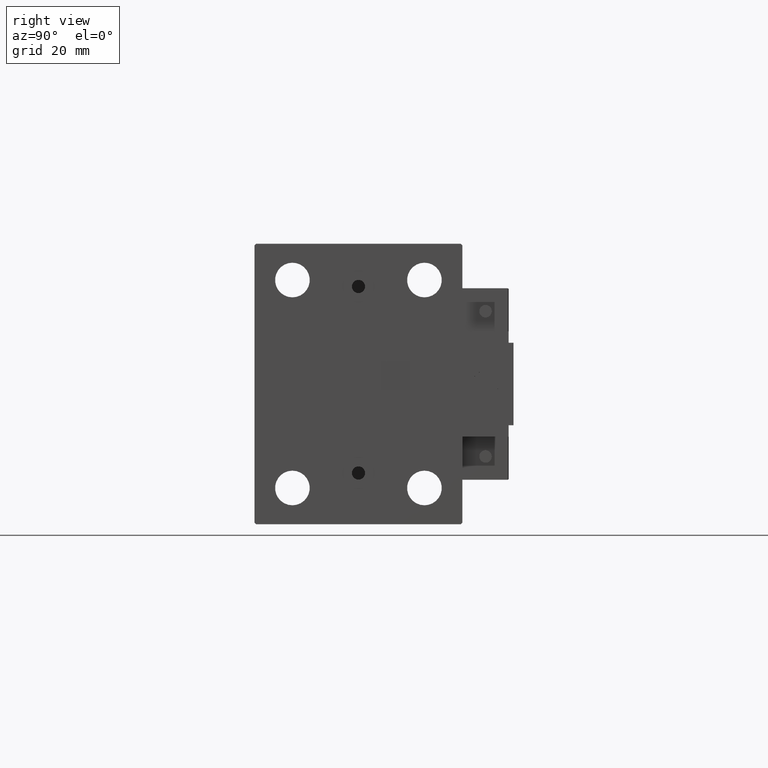
[diagram: clean part render]
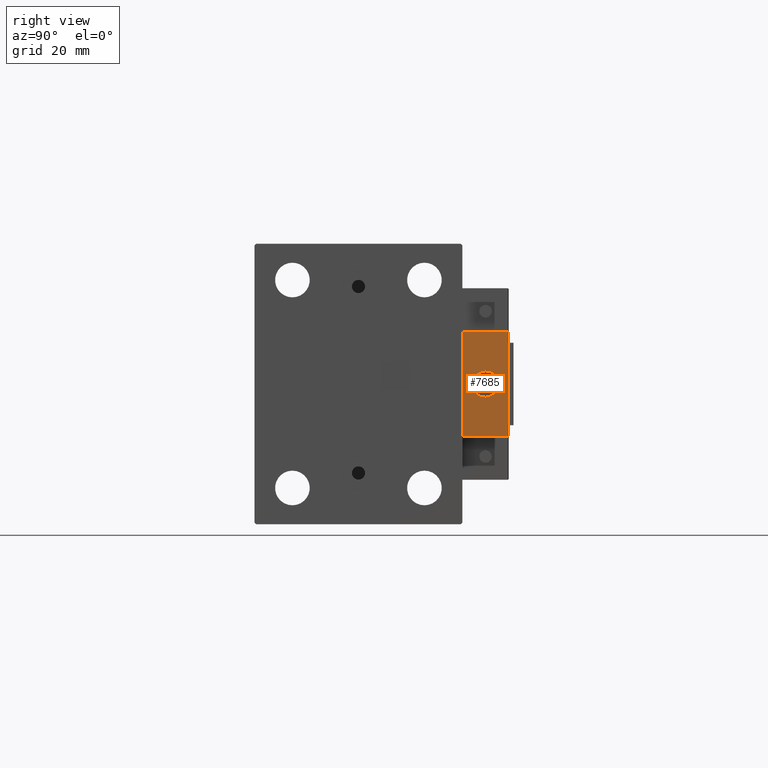
[diagram: same view with one face highlighted and labeled with its STEP entity id]
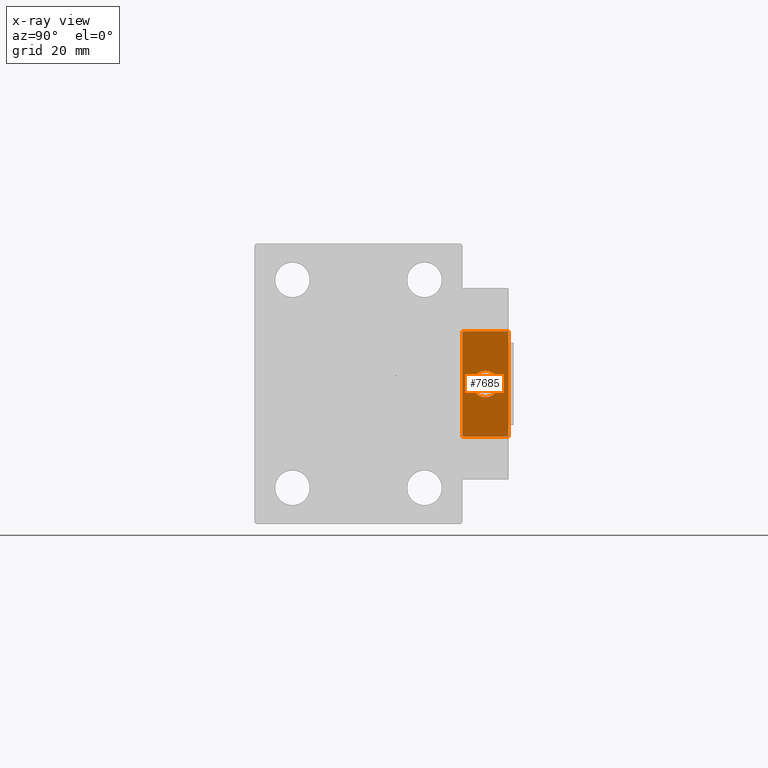
[diagram: x-ray of the same camera — body ghosted, the highlighted face saturated]
A machine part, right view. The second image highlights one B-rep face of the part: STEP entity #7685.
The next image is the same camera in x-ray: the body ghosted, the highlighted face saturated — about 0% of this face is hidden behind the body in this view.
In plain terms, the highlighted planar face has unit normal (-1, 0, 0).
Its self-contained STEP definition (entity closure, byte-faithful):
#257 = ORIENTED_EDGE ( 'NONE', *, *, #43330, .F. ) ;
#260 = CARTESIAN_POINT ( 'NONE',  ( 10.00000000000000000, 7.000000000000000000, 15.99999999999999289 ) ) ;
#2046 = DIRECTION ( 'NONE',  ( 0.000000000000000000, -1.000000000000000000, 0.000000000000000000 ) ) ;
#3676 = CARTESIAN_POINT ( 'NONE',  ( 10.00000000000000000, -7.000000000000000000, 15.99999999999999289 ) ) ;
#3853 = VECTOR ( 'NONE', #2046, 1000.000000000000000 ) ;
#4137 = EDGE_LOOP ( 'NONE', ( #38206, #16427 ) ) ;
#4671 = ORIENTED_EDGE ( 'NONE', *, *, #15276, .F. ) ;
#4719 = DIRECTION ( 'NONE',  ( 0.000000000000000000, 0.000000000000000000, -1.000000000000000000 ) ) ;
#5549 = AXIS2_PLACEMENT_3D ( 'NONE', #49474, #29093, #33013 ) ;
#6591 = EDGE_CURVE ( 'NONE', #22987, #41951, #46300, .T. ) ;
#7219 = CIRCLE ( 'NONE', #5549, 4.000000000000000000 ) ;
#7685 = ADVANCED_FACE ( 'NONE', ( #16171, #25066 ), #28735, .F. ) ;
#8479 = CARTESIAN_POINT ( 'NONE',  ( 10.00000000000000000, -7.000000000000000000, 15.99999999999999289 ) ) ;
#11959 = EDGE_CURVE ( 'NONE', #41951, #22987, #7219, .T. ) ;
#12060 = AXIS2_PLACEMENT_3D ( 'NONE', #13850, #37934, #30058 ) ;
#12771 = DIRECTION ( 'NONE',  ( -0.000000000000000000, 0.000000000000000000, 1.000000000000000000 ) ) ;
#13850 = CARTESIAN_POINT ( 'NONE',  ( 10.00000000000000000, 0.000000000000000000, 0.000000000000000000 ) ) ;
#14638 = VERTEX_POINT ( 'NONE', #8479 ) ;
#15276 = EDGE_CURVE ( 'NONE', #37859, #33108, #29527, .T. ) ;
#16171 = FACE_BOUND ( 'NONE', #4137, .T. ) ;
#16427 = ORIENTED_EDGE ( 'NONE', *, *, #11959, .T. ) ;
#20335 = CARTESIAN_POINT ( 'NONE',  ( 10.00000000000000000, 7.000000000000000000, -16.00000000000000711 ) ) ;
#21439 = CARTESIAN_POINT ( 'NONE',  ( 10.00000000000000000, 7.000000000000000000, -16.00000000000000711 ) ) ;
#22987 = VERTEX_POINT ( 'NONE', #45027 ) ;
#23199 = EDGE_CURVE ( 'NONE', #30056, #14638, #47595, .T. ) ;
#23285 = DIRECTION ( 'NONE',  ( 0.000000000000000000, -1.000000000000000000, 0.000000000000000000 ) ) ;
#23891 = EDGE_CURVE ( 'NONE', #14638, #33108, #47368, .T. ) ;
#25066 = FACE_OUTER_BOUND ( 'NONE', #33951, .T. ) ;
#25125 = LINE ( 'NONE', #260, #46954 ) ;
#26387 = CARTESIAN_POINT ( 'NONE',  ( 10.00000000000000000, 4.898587196589412829E-16, -4.000000000000000000 ) ) ;
#26560 = CARTESIAN_POINT ( 'NONE',  ( 10.00000000000000000, 7.000000000000000000, 15.99999999999999289 ) ) ;
#28735 = PLANE ( 'NONE',  #47987 ) ;
#29093 = DIRECTION ( 'NONE',  ( -1.000000000000000000, 0.000000000000000000, 0.000000000000000000 ) ) ;
#29527 = LINE ( 'NONE', #21439, #3853 ) ;
#30056 = VERTEX_POINT ( 'NONE', #26560 ) ;
#30058 = DIRECTION ( 'NONE',  ( 0.000000000000000000, 0.000000000000000000, 1.000000000000000000 ) ) ;
#31360 = VECTOR ( 'NONE', #23285, 1000.000000000000000 ) ;
#32646 = DIRECTION ( 'NONE',  ( -1.000000000000000000, 0.000000000000000000, -0.000000000000000000 ) ) ;
#32990 = ORIENTED_EDGE ( 'NONE', *, *, #23199, .T. ) ;
#33013 = DIRECTION ( 'NONE',  ( 0.000000000000000000, 0.000000000000000000, 1.000000000000000000 ) ) ;
#33108 = VERTEX_POINT ( 'NONE', #34876 ) ;
#33951 = EDGE_LOOP ( 'NONE', ( #50469, #4671, #257, #32990 ) ) ;
#34606 = VECTOR ( 'NONE', #47869, 1000.000000000000000 ) ;
#34876 = CARTESIAN_POINT ( 'NONE',  ( 10.00000000000000000, -7.000000000000000000, -16.00000000000000711 ) ) ;
#36087 = CARTESIAN_POINT ( 'NONE',  ( 10.00000000000000000, 7.000000000000000000, 15.99999999999999289 ) ) ;
#37859 = VERTEX_POINT ( 'NONE', #20335 ) ;
#37934 = DIRECTION ( 'NONE',  ( -1.000000000000000000, 0.000000000000000000, 0.000000000000000000 ) ) ;
#38206 = ORIENTED_EDGE ( 'NONE', *, *, #6591, .T. ) ;
#41951 = VERTEX_POINT ( 'NONE', #26387 ) ;
#43330 = EDGE_CURVE ( 'NONE', #30056, #37859, #25125, .T. ) ;
#44412 = CARTESIAN_POINT ( 'NONE',  ( 10.00000000000000000, 0.000000000000000000, 0.000000000000000000 ) ) ;
#45027 = CARTESIAN_POINT ( 'NONE',  ( 10.00000000000000000, 0.000000000000000000, 4.000000000000000000 ) ) ;
#46300 = CIRCLE ( 'NONE', #12060, 4.000000000000000000 ) ;
#46954 = VECTOR ( 'NONE', #4719, 1000.000000000000000 ) ;
#47368 = LINE ( 'NONE', #3676, #34606 ) ;
#47595 = LINE ( 'NONE', #36087, #31360 ) ;
#47869 = DIRECTION ( 'NONE',  ( 0.000000000000000000, 0.000000000000000000, -1.000000000000000000 ) ) ;
#47987 = AXIS2_PLACEMENT_3D ( 'NONE', #44412, #32646, #12771 ) ;
#49474 = CARTESIAN_POINT ( 'NONE',  ( 10.00000000000000000, 0.000000000000000000, 0.000000000000000000 ) ) ;
#50469 = ORIENTED_EDGE ( 'NONE', *, *, #23891, .T. ) ;